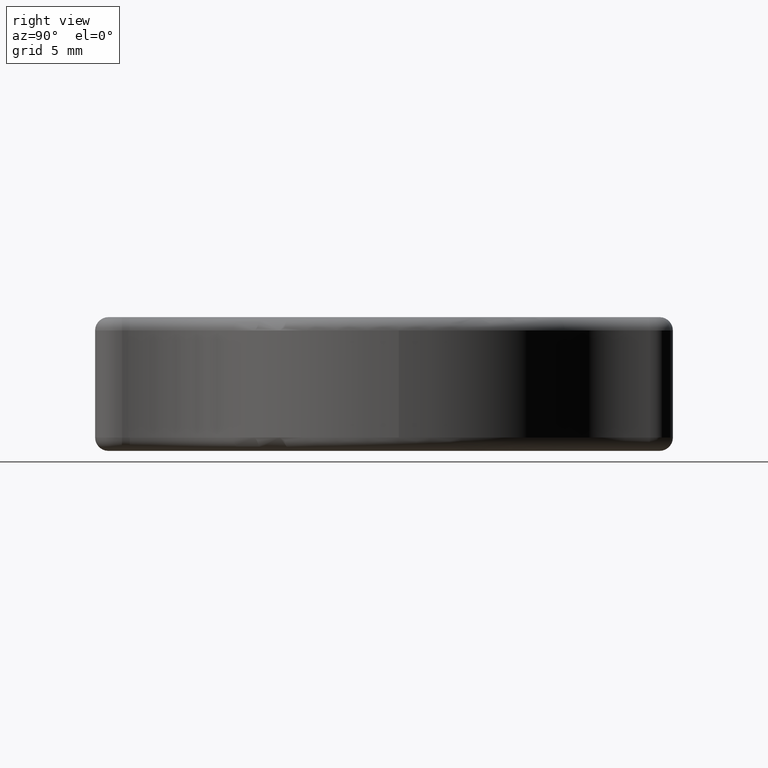
[diagram: clean part render]
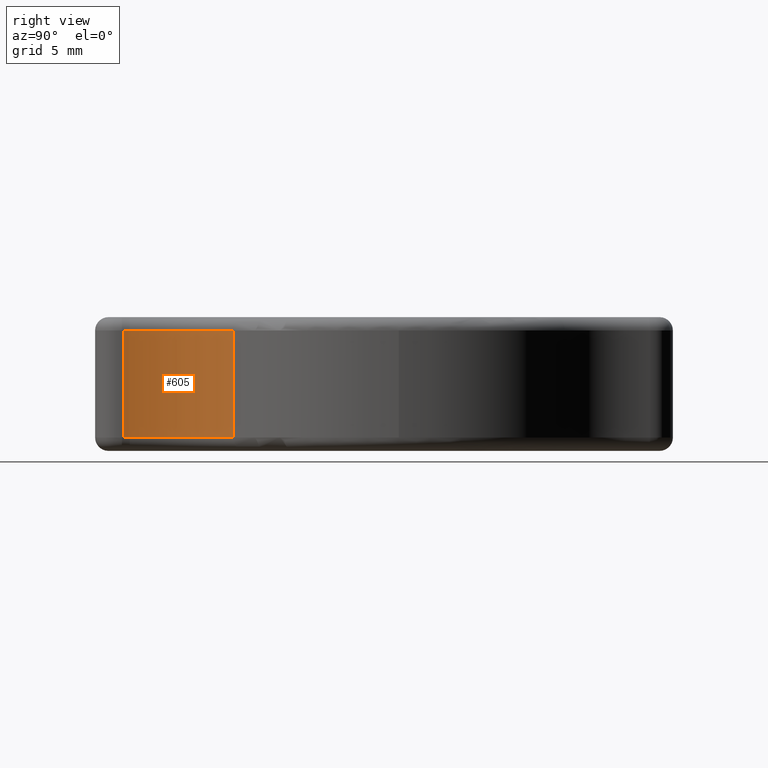
[diagram: same view with one face highlighted and labeled with its STEP entity id]
A machine part, right view. The second image highlights one B-rep face of the part: STEP entity #605.
In plain terms, the highlighted cylindrical surface (partial cylindrical patch) has radius 10 mm, axis along (0, -0, 1).
Its self-contained STEP definition (entity closure, byte-faithful):
#9 = DIRECTION ( 'NONE',  ( 2.419439951480636200E-017, -5.703514230536423600E-031, 1.000000000000000000 ) ) ;
#33 = ORIENTED_EDGE ( 'NONE', *, *, #382, .T. ) ;
#180 = CIRCLE ( 'NONE', #1467, 10.00000000000000200 ) ;
#205 = ORIENTED_EDGE ( 'NONE', *, *, #1129, .T. ) ;
#223 = DIRECTION ( 'NONE',  ( -2.419439951480636200E-017, 5.703514230536423600E-031, -1.000000000000000000 ) ) ;
#261 = VERTEX_POINT ( 'NONE', #625 ) ;
#327 = AXIS2_PLACEMENT_3D ( 'NONE', #1247, #2042, #835 ) ;
#346 = CYLINDRICAL_SURFACE ( 'NONE', #1427, 10.00000000000000200 ) ;
#382 = EDGE_CURVE ( 'NONE', #1545, #261, #2631, .T. ) ;
#498 = CARTESIAN_POINT ( 'NONE',  ( 10.14624297683040400, -12.37148954067859000, -0.9999999999999970000 ) ) ;
#501 = AXIS2_PLACEMENT_3D ( 'NONE', #2617, #2643, #2000 ) ;
#503 = VECTOR ( 'NONE', #9, 1000.000000000000000 ) ;
#522 = DIRECTION ( 'NONE',  ( 2.419439951480636200E-017, -5.703514230536423600E-031, 1.000000000000000000 ) ) ;
#539 = CARTESIAN_POINT ( 'NONE',  ( 16.48764483734941100, -20.10367050360270700, -9.999999999999980500 ) ) ;
#605 = ADVANCED_FACE ( 'NONE', ( #974 ), #346, .F. ) ;
#625 = CARTESIAN_POINT ( 'NONE',  ( 10.14624297683040400, -12.37148954067859000, -8.999999999999982200 ) ) ;
#656 = CIRCLE ( 'NONE', #501, 10.00000000000000200 ) ;
#660 = DIRECTION ( 'NONE',  ( -1.000000000000000000, 0.0000000000000000000, 0.0000000000000000000 ) ) ;
#835 = DIRECTION ( 'NONE',  ( -1.000000000000000000, 0.0000000000000000000, 0.0000000000000000000 ) ) ;
#974 = FACE_OUTER_BOUND ( 'NONE', #1983, .T. ) ;
#994 = EDGE_CURVE ( 'NONE', #2592, #1759, #180, .T. ) ;
#1048 = LINE ( 'NONE', #1858, #503 ) ;
#1129 = EDGE_CURVE ( 'NONE', #1447, #1545, #2427, .T. ) ;
#1163 = VERTEX_POINT ( 'NONE', #1228 ) ;
#1170 = CARTESIAN_POINT ( 'NONE',  ( 6.487644837349408900, -20.10367050360270700, -8.999999999999982200 ) ) ;
#1173 = CARTESIAN_POINT ( 'NONE',  ( 16.48764483734941100, -20.10367050360270700, -0.9999999999999972200 ) ) ;
#1228 = CARTESIAN_POINT ( 'NONE',  ( 6.499999999999992900, -20.60061175060045000, -0.9999999999999970000 ) ) ;
#1247 = CARTESIAN_POINT ( 'NONE',  ( 16.48764483734941100, -20.10367050360270700, -8.999999999999982200 ) ) ;
#1308 = DIRECTION ( 'NONE',  ( 2.419439951480636200E-017, -5.703514230536423600E-031, 1.000000000000000000 ) ) ;
#1349 = ORIENTED_EDGE ( 'NONE', *, *, #1834, .T. ) ;
#1384 = LINE ( 'NONE', #2521, #1718 ) ;
#1427 = AXIS2_PLACEMENT_3D ( 'NONE', #539, #522, #2142 ) ;
#1438 = CARTESIAN_POINT ( 'NONE',  ( 6.487644837349408900, -20.10367050360270700, -0.9999999999999970000 ) ) ;
#1447 = VERTEX_POINT ( 'NONE', #1688 ) ;
#1455 = CARTESIAN_POINT ( 'NONE',  ( 16.48764483734941100, -20.10367050360270700, -8.999999999999982200 ) ) ;
#1467 = AXIS2_PLACEMENT_3D ( 'NONE', #1173, #2401, #1571 ) ;
#1545 = VERTEX_POINT ( 'NONE', #1170 ) ;
#1571 = DIRECTION ( 'NONE',  ( -1.000000000000000000, 1.318389841742373200E-014, 2.168404344971008600E-017 ) ) ;
#1610 = ORIENTED_EDGE ( 'NONE', *, *, #994, .T. ) ;
#1629 = EDGE_CURVE ( 'NONE', #1759, #1163, #656, .T. ) ;
#1688 = CARTESIAN_POINT ( 'NONE',  ( 6.499999999999992900, -20.60061175060045000, -8.999999999999982200 ) ) ;
#1718 = VECTOR ( 'NONE', #1308, 1000.000000000000000 ) ;
#1759 = VERTEX_POINT ( 'NONE', #1438 ) ;
#1834 = EDGE_CURVE ( 'NONE', #261, #2592, #1384, .T. ) ;
#1858 = CARTESIAN_POINT ( 'NONE',  ( 6.499999999999992900, -20.60061175060045000, -9.999999999999980500 ) ) ;
#1914 = AXIS2_PLACEMENT_3D ( 'NONE', #1455, #223, #660 ) ;
#1983 = EDGE_LOOP ( 'NONE', ( #1349, #1610, #2505, #2414, #205, #33 ) ) ;
#2000 = DIRECTION ( 'NONE',  ( -1.000000000000000000, 0.0000000000000000000, 2.168404344971008600E-017 ) ) ;
#2042 = DIRECTION ( 'NONE',  ( -2.419439951480636200E-017, 5.703514230536423600E-031, -1.000000000000000000 ) ) ;
#2142 = DIRECTION ( 'NONE',  ( 1.000000000000000000, 0.0000000000000000000, 0.0000000000000000000 ) ) ;
#2401 = DIRECTION ( 'NONE',  ( 2.419439951480636200E-017, -5.703514230536423600E-031, 1.000000000000000000 ) ) ;
#2414 = ORIENTED_EDGE ( 'NONE', *, *, #2502, .F. ) ;
#2427 = CIRCLE ( 'NONE', #327, 10.00000000000000200 ) ;
#2502 = EDGE_CURVE ( 'NONE', #1447, #1163, #1048, .T. ) ;
#2505 = ORIENTED_EDGE ( 'NONE', *, *, #1629, .T. ) ;
#2521 = CARTESIAN_POINT ( 'NONE',  ( 10.14624297683040400, -12.37148954067859000, -9.999999999999980500 ) ) ;
#2592 = VERTEX_POINT ( 'NONE', #498 ) ;
#2617 = CARTESIAN_POINT ( 'NONE',  ( 16.48764483734941100, -20.10367050360270700, -0.9999999999999972200 ) ) ;
#2631 = CIRCLE ( 'NONE', #1914, 10.00000000000000200 ) ;
#2643 = DIRECTION ( 'NONE',  ( 2.419439951480636200E-017, -5.703514230536423600E-031, 1.000000000000000000 ) ) ;